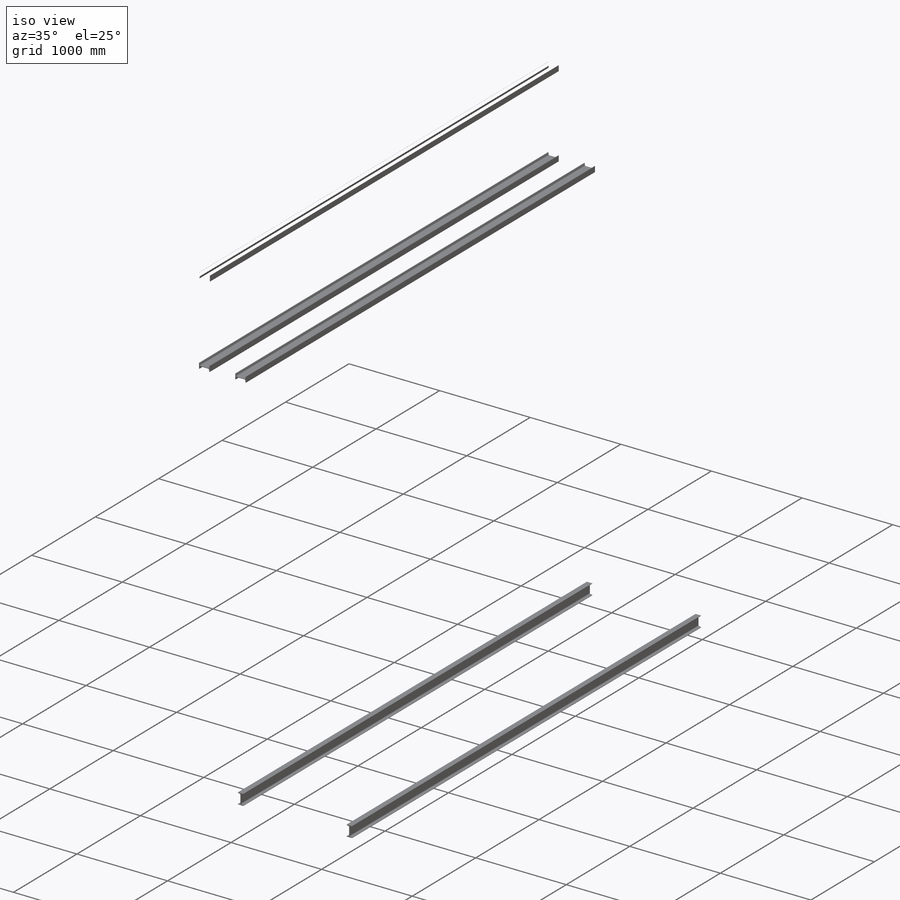
[diagram: iso view]
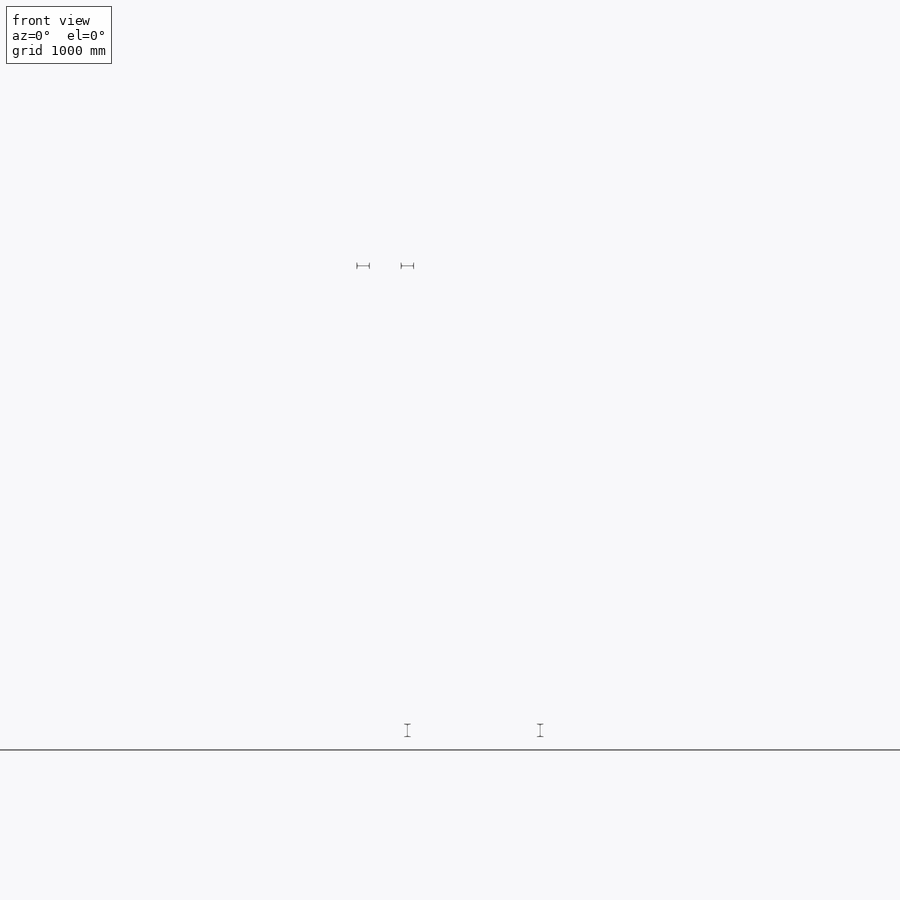
[diagram: front view]
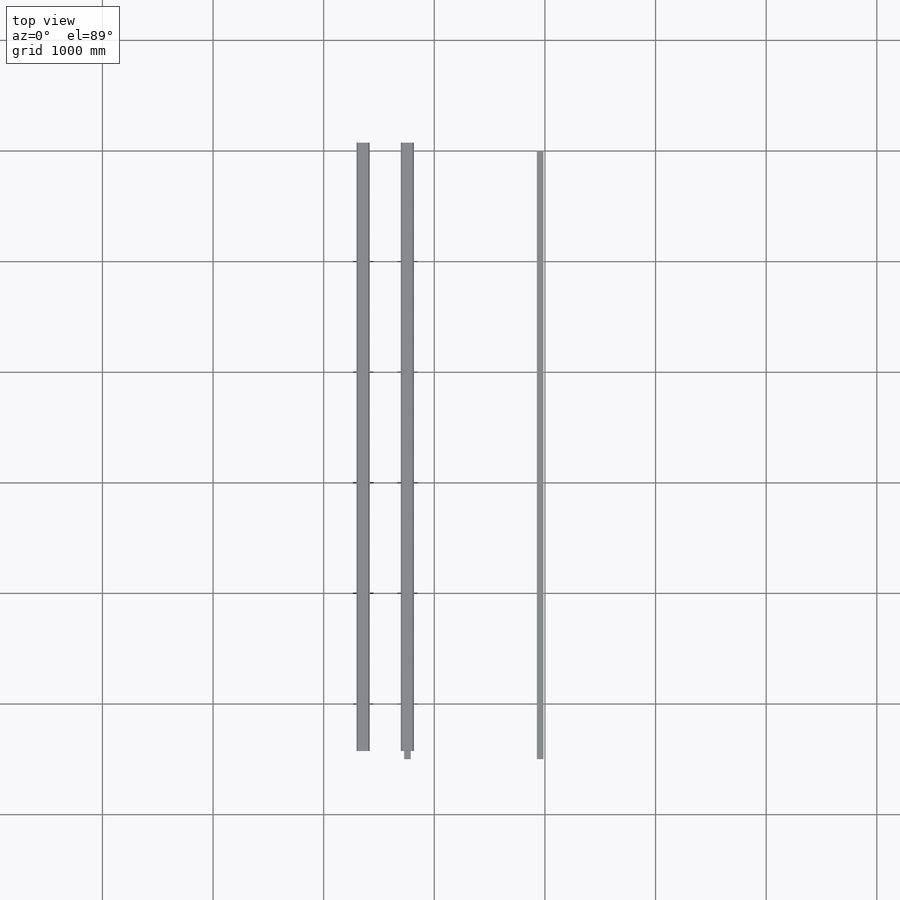
[diagram: top view]
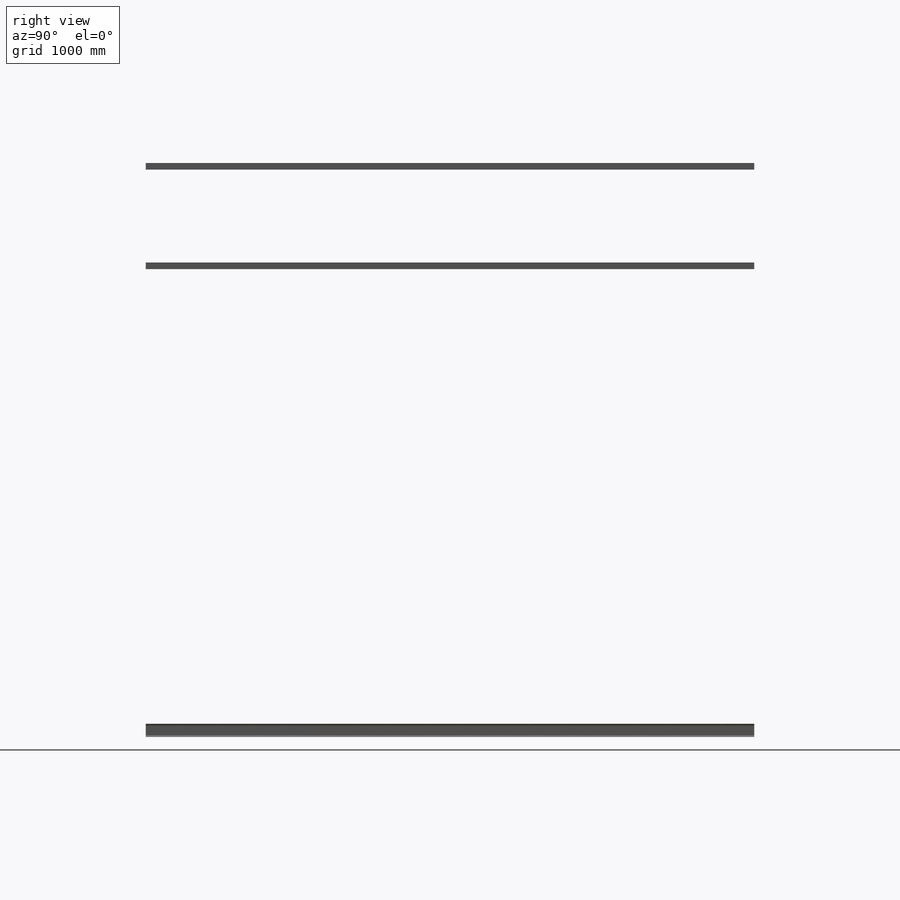
[diagram: right view]
SOLIDWORKS PART (.sldprt)
format: sldprt  version: not decoded by parser v0  size: 2,274,304 bytes
history: native  units: mm
features: sketch x16, plane x10, extrude x5, material x1 (+16 scaffold rows collapsed)
feature tree (48):
  scaffold x16  (default folders/planes/origin — collapsed)
  material  "Material <not specified>"
  sketch  "Sketch2"  dims[c1.D1=900.0mm c1.D2=500.0mm c1.D3=5000.0mm c1.D4=1150.0mm c1.D5=800.0mm c1.D6=800.0mm c1.D7=1200.0mm c1.D8=3800.0mm c2.D7=1200.0mm c2.D8=3400.0mm c2.D9=4200.0mm]
  sketch  "3DSketch1"  dims[c1.D1=5500.0mm c1.D2=3600.0mm c1.D3=800.0mm c1.D4=1100.0mm c1.D5=~5357.719242mm c2.D5=~178.875745deg c3.D5=1100.0mm c3.D6=800.0mm]
  plane  "Plane1"
  sketch  "Sketch1"  dims[c1.D5=6.35mm c1.D7=2.54mm c1.D8=2.54mm c1.D10=2.54mm c1.RI=8.0mm c1.RA=2.54mm c1.BF=60.0mm c1.D2=6.35mm c1.D3=44.45mm c1.D4=12.7mm c1.D6=90.0deg c2.D2=97.0deg c2.D7=90.0deg c2.D8=6.35mm c2.D9=90.0deg c2.D10=19.05mm c3.D2=90.0deg c3.D6=99.0deg c3.D7=19.05mm c3.D9=99.0deg c3.D12=5.08mm c3.D8=19.05mm c4.D6=90.0deg c4.DEPTH=120.0mm c4.TW=5.0mm c5.D6=90.0deg c5.D7=90.0deg c5.D8=16.51mm c5.D1=86.662mm c6.D6=~19.183835mm c7.D6=9.463deg c7.D7=~13.491778mm c8.D7=9.463deg c8.TF=6.0mm c8.D2=40.0mm c9.D2=9.463deg]
  plane  "Plane2"
  sketch  "Sketch11"  dims[c1.D5=6.35mm c1.D7=2.54mm c1.D8=2.54mm c1.D10=2.54mm c1.RI=8.0mm c1.RA=2.54mm c1.BF=60.0mm c1.D2=6.35mm c1.D3=44.45mm c1.D4=12.7mm c1.D6=90.0deg c2.D2=97.0deg c2.D7=90.0deg c2.D8=6.35mm c2.D9=90.0deg c2.D10=19.05mm c3.D2=90.0deg c3.D6=99.0deg c3.D7=19.05mm c3.D9=99.0deg c3.D12=5.08mm c3.D8=19.05mm c4.D6=90.0deg c4.DEPTH=120.0mm c4.TW=5.0mm c5.D6=90.0deg c5.D7=90.0deg c5.D8=16.51mm c5.D1=86.662mm c6.D6=~19.183835mm c7.D6=9.463deg c7.D7=~13.491778mm c8.D7=9.463deg c8.TF=6.0mm c8.D2=40.0mm c9.D2=9.463deg]
  plane  "Plane3"
  sketch  "Sketch12"  dims[c1.D5=6.35mm c1.D7=2.54mm c1.D8=2.54mm c1.D10=2.54mm c1.RI=8.0mm c1.RA=2.54mm c1.BF=60.0mm c1.D2=6.35mm c1.D3=44.45mm c1.D4=12.7mm c1.D6=90.0deg c2.D2=97.0deg c2.D7=90.0deg c2.D8=6.35mm c2.D9=90.0deg c2.D10=19.05mm c3.D2=90.0deg c3.D6=99.0deg c3.D7=19.05mm c3.D9=99.0deg c3.D12=5.08mm c3.D8=19.05mm c4.D6=90.0deg c4.DEPTH=120.0mm c4.TW=5.0mm c5.D6=90.0deg c5.D7=90.0deg c5.D8=16.51mm c5.D1=86.662mm c6.D6=~19.183835mm c7.D6=9.463deg c7.D7=~13.491778mm c8.D7=9.463deg c8.TF=6.0mm c8.D2=40.0mm c9.D2=9.463deg]
  plane  "Plane4"
  sketch  "Sketch13"  dims[c1.D5=6.35mm c1.D7=2.54mm c1.D8=2.54mm c1.D10=2.54mm c1.RI=8.0mm c1.RA=2.54mm c1.BF=60.0mm c1.D2=6.35mm c1.D3=44.45mm c1.D4=12.7mm c1.D6=90.0deg c2.D2=97.0deg c2.D7=90.0deg c2.D8=6.35mm c2.D9=90.0deg c2.D10=19.05mm c3.D2=90.0deg c3.D6=99.0deg c3.D7=19.05mm c3.D9=99.0deg c3.D12=5.08mm c3.D8=19.05mm c4.D6=90.0deg c4.DEPTH=120.0mm c4.TW=5.0mm c5.D6=90.0deg c5.D7=90.0deg c5.D8=16.51mm c5.D1=86.662mm c6.D6=~19.183835mm c7.D6=9.463deg c7.D7=~13.491778mm c8.D7=9.463deg c8.TF=6.0mm c8.D2=40.0mm c9.D2=9.463deg]
  plane  "Plane5"
  sketch  "Sketch14"  dims[c1.D5=6.35mm c1.D7=2.54mm c1.D8=2.54mm c1.D10=2.54mm c1.RI=8.0mm c1.RA=2.54mm c1.BF=60.0mm c1.D2=6.35mm c1.D3=44.45mm c1.D4=12.7mm c1.D6=90.0deg c2.D2=97.0deg c2.D7=90.0deg c2.D8=6.35mm c2.D9=90.0deg c2.D10=19.05mm c3.D2=90.0deg c3.D6=99.0deg c3.D7=19.05mm c3.D9=99.0deg c3.D12=5.08mm c3.D8=19.05mm c4.D6=90.0deg c4.DEPTH=120.0mm c4.TW=5.0mm c5.D6=90.0deg c5.D7=90.0deg c5.D8=16.51mm c5.D1=86.662mm c6.D6=~19.183835mm c7.D6=9.463deg c7.D7=~13.491778mm c8.D7=9.463deg c8.TF=6.0mm c8.D2=40.0mm c9.D2=9.463deg]
  plane  "Plane6"
  sketch  "Sketch15"  dims[In_dia=25.7mm Out_dia=33.7mm]
  plane  "Plane7"
  sketch  "Sketch16"  dims[In_dia=25.7mm Out_dia=33.7mm]
  plane  "Plane8"
  sketch  "Sketch17"  dims[In_dia=25.7mm Out_dia=33.7mm]
  plane  "Plane9"
  sketch  "Sketch19"  dims[c1.D5=6.35mm c1.D7=2.54mm c1.D8=2.54mm c1.D10=2.54mm c1.RI=8.0mm c1.RA=2.54mm c1.BF=60.0mm c1.D2=6.35mm c1.D3=44.45mm c1.D4=12.7mm c1.D6=90.0deg c2.D2=97.0deg c2.D7=90.0deg c2.D8=6.35mm c2.D9=90.0deg c2.D10=19.05mm c3.D2=90.0deg c3.D6=99.0deg c3.D7=19.05mm c3.D9=99.0deg c3.D12=5.08mm c3.D8=19.05mm c4.D6=90.0deg c4.DEPTH=120.0mm c4.TW=5.0mm c5.D6=90.0deg c5.D7=90.0deg c5.D8=16.51mm c5.D1=86.662mm c6.D6=~19.183835mm c7.D6=9.463deg c7.D7=~13.491778mm c8.D7=9.463deg c8.TF=6.0mm c8.D2=40.0mm c9.D2=9.463deg]
  plane  "Plane10"  Offset=3660mm
  sketch  "Sketch20"
  extrude  "Extrude1"  Depth=20mm
  sketch  "Sketch21"  dims[D1=200.0mm D2=350.0mm D3=5.0mm]
  extrude  "Extrude2"  [1 undecoded]
  sketch  "Sketch22"
  extrude  "Extrude3"  Depth=150mm
  sketch  "Sketch23"
  extrude  "Extrude4"  Depth=400mm
  sketch  "Sketch24"
  extrude  "Extrude5"  Depth=100mm
decode coverage: 16 of 21 modeling features carry decoded parameters
note: ~ marks probable driven/reference dimensions
note: 1 parameter value undecoded
note: suppression state not decoded; provenance and decode notes live in map.json
